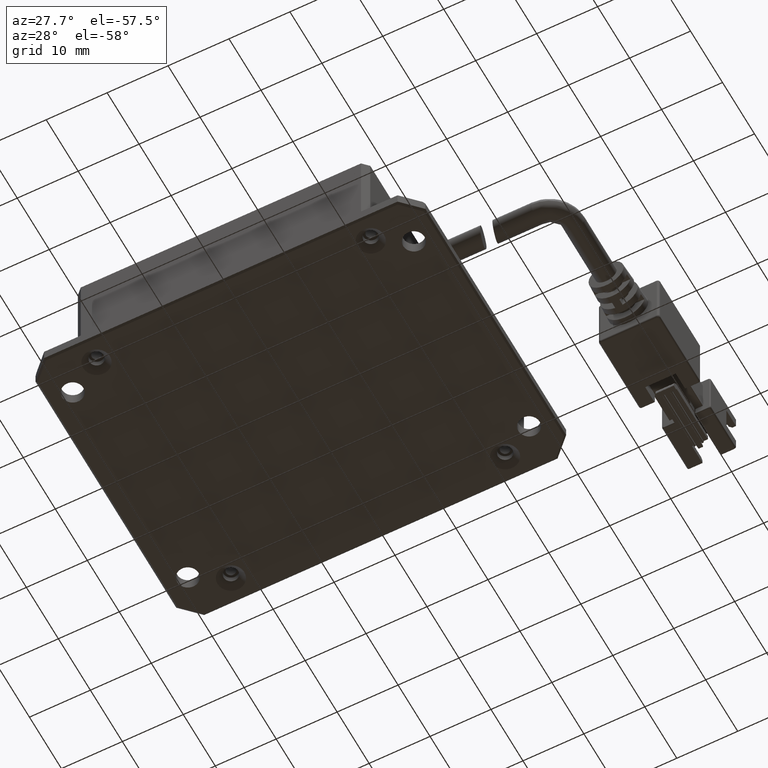
[diagram: clean part render]
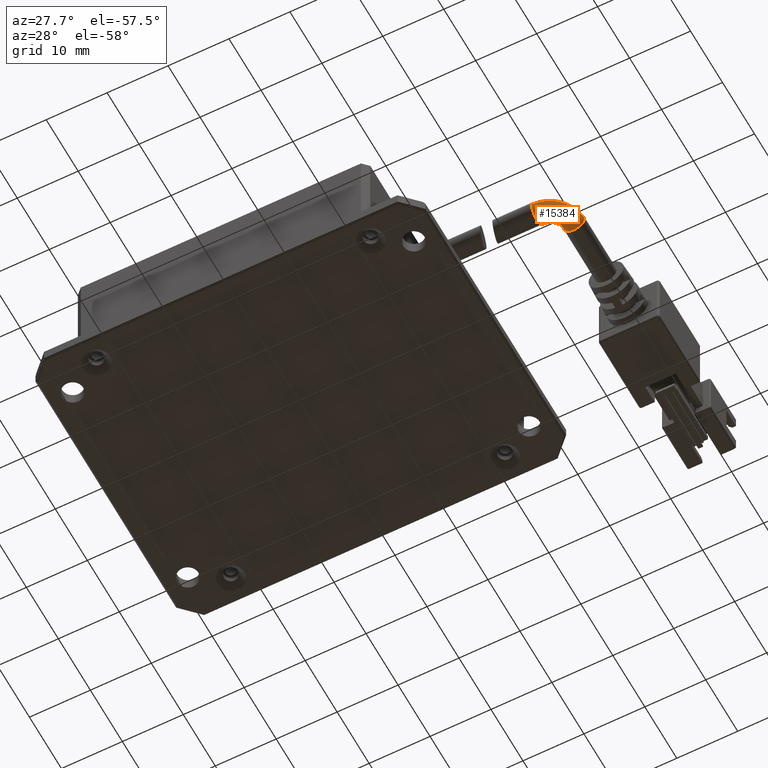
[diagram: same view with one face highlighted and labeled with its STEP entity id]
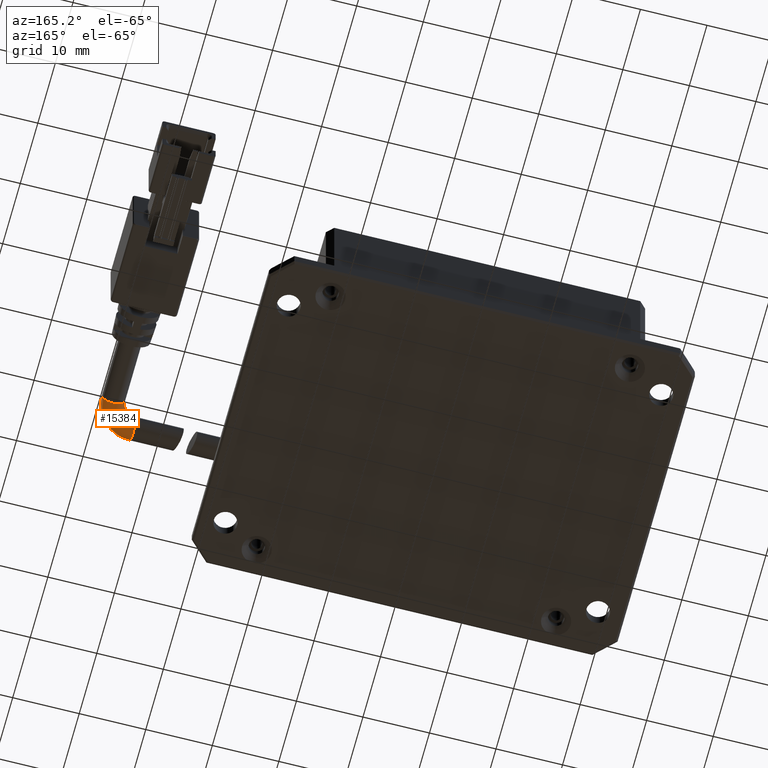
[diagram: same view with one face highlighted and labeled with its STEP entity id]
A machine part, auxiliary view. The second image highlights one B-rep face of the part: STEP entity #15384.
A second angle (auxiliary view) of the same face is appended — the face is thin or edge-on in the first view.
In plain terms, the highlighted face is a freeform B-spline surface patch.
Its self-contained STEP definition (entity closure, byte-faithful):
#15 = EDGE_CURVE ( 'NONE', #17907, #14934, #2688, .T. ) ;
#1228 = CARTESIAN_POINT ( 'NONE',  ( 48.84316533027873700, -3.709049255440967300, 4.999999999983692200 ) ) ;
#2635 = FACE_OUTER_BOUND ( 'NONE', #17044, .T. ) ;
#2688 = CIRCLE ( 'NONE', #7589, 5.749999999999998200 ) ;
#2735 = CARTESIAN_POINT ( 'NONE',  ( 45.34316533027871500, -5.027068740101500000, 4.999999999983690400 ) ) ;
#2800 = CARTESIAN_POINT ( 'NONE',  ( 46.46143734663343100, -9.459049255440968200, 4.999999999983690400 ) ) ;
#2860 = CARTESIAN_POINT ( 'NONE',  ( 43.09316533027873700, -3.709049255440967800, 4.999999999983692200 ) ) ;
#3577 = CARTESIAN_POINT ( 'NONE',  ( 47.09316533027874400, -3.709049255440967800, 4.999999999983692200 ) ) ;
#4005 = DIRECTION ( 'NONE',  ( 0.0000000000000000000, -1.000000000000000000, 0.0000000000000000000 ) ) ;
#4336 = CARTESIAN_POINT ( 'NONE',  ( 43.09316533027873000, -5.959049255440961100, 4.999999999983692200 ) ) ;
#4452 = DIRECTION ( 'NONE',  ( -1.000000000000000000, 0.0000000000000000000, 0.0000000000000000000 ) ) ;
#4779 = CARTESIAN_POINT ( 'NONE',  ( 43.09316533027873700, -7.709049255440968200, 4.999999999983692200 ) ) ;
#5194 = DIRECTION ( 'NONE',  ( 1.000000000000000000, 0.0000000000000000000, 0.0000000000000000000 ) ) ;
#5283 = ORIENTED_EDGE ( 'NONE', *, *, #16667, .F. ) ;
#5939 = CARTESIAN_POINT ( 'NONE',  ( 45.34316533027873700, -5.027068740101500000, 1.499999999983693000 ) ) ;
#6378 = DIRECTION ( 'NONE',  ( 0.0000000000000000000, -1.000000000000000000, 0.0000000000000000000 ) ) ;
#6533 =( BOUNDED_SURFACE ( )  B_SPLINE_SURFACE ( 3, 3, ( 
 ( #7658, #2735, #13787, #4336 ),
 ( #15371, #5939, #16979, #7523 ),
 ( #18585, #9112, #20170, #10675 ),
 ( #1228, #12278, #2800, #13847 ) ),
 .UNSPECIFIED., .F., .F., .F. ) 
 B_SPLINE_SURFACE_WITH_KNOTS ( ( 4, 4 ),
 ( 4, 4 ),
 ( 0.0000000000000000000, 1.000000000000000000 ),
 ( 0.0000000000000000000, 1.000000000000000000 ),
 .UNSPECIFIED. ) 
 GEOMETRIC_REPRESENTATION_ITEM ( )  RATIONAL_B_SPLINE_SURFACE ( (
 ( 1.000000000000000000, 0.8047378541243649400, 0.8047378541243649400, 1.000000000000000000),
 ( 0.3333333333333333700, 0.2682459513747883500, 0.2682459513747883500, 0.3333333333333333700),
 ( 0.3333333333333333700, 0.2682459513747883500, 0.2682459513747883500, 0.3333333333333333700),
 ( 1.000000000000000000, 0.8047378541243649400, 0.8047378541243649400, 1.000000000000000000) ) ) 
 REPRESENTATION_ITEM ( '' )  SURFACE ( )  );
#6594 = AXIS2_PLACEMENT_3D ( 'NONE', #4779, #15805, #6378 ) ;
#6759 = ORIENTED_EDGE ( 'NONE', *, *, #17516, .F. ) ;
#7523 = CARTESIAN_POINT ( 'NONE',  ( 43.09316533027873700, -5.959049255440961100, 1.499999999983692800 ) ) ;
#7589 = AXIS2_PLACEMENT_3D ( 'NONE', #13600, #13669, #13747 ) ;
#7658 = CARTESIAN_POINT ( 'NONE',  ( 45.34316533027873000, -3.709049255440967300, 4.999999999983692200 ) ) ;
#8856 = CIRCLE ( 'NONE', #10358, 2.249999999999995100 ) ;
#9112 = CARTESIAN_POINT ( 'NONE',  ( 48.84316533027873700, -7.077321271795670800, 1.499999999983693000 ) ) ;
#9416 = CIRCLE ( 'NONE', #6594, 1.749999999999999800 ) ;
#9519 = VERTEX_POINT ( 'NONE', #19930 ) ;
#10358 = AXIS2_PLACEMENT_3D ( 'NONE', #2860, #13889, #4452 ) ;
#10675 = CARTESIAN_POINT ( 'NONE',  ( 43.09316533027873700, -9.459049255440964600, 1.499999999983692800 ) ) ;
#11433 = VERTEX_POINT ( 'NONE', #18082 ) ;
#11620 = DIRECTION ( 'NONE',  ( 1.000000000000000000, 1.836970198721029700E-016, -2.588449845256445000E-031 ) ) ;
#12278 = CARTESIAN_POINT ( 'NONE',  ( 48.84316533027873700, -7.077321271795669900, 4.999999999983690400 ) ) ;
#13012 = ORIENTED_EDGE ( 'NONE', *, *, #15, .T. ) ;
#13414 = CIRCLE ( 'NONE', #16965, 1.750000000000001600 ) ;
#13589 = CARTESIAN_POINT ( 'NONE',  ( 43.09316533027873700, -7.709049255440968200, 4.999999999983692200 ) ) ;
#13600 = CARTESIAN_POINT ( 'NONE',  ( 43.09316533027873700, -3.709049255440967800, 4.999999999983692200 ) ) ;
#13669 = DIRECTION ( 'NONE',  ( -2.588449845256445000E-031, -2.672764710092196000E-049, -1.000000000000000000 ) ) ;
#13747 = DIRECTION ( 'NONE',  ( -1.000000000000000000, 0.0000000000000000000, 0.0000000000000000000 ) ) ;
#13787 = CARTESIAN_POINT ( 'NONE',  ( 44.41118481493926100, -5.959049255440966400, 4.999999999983690400 ) ) ;
#13847 = CARTESIAN_POINT ( 'NONE',  ( 43.09316533027873000, -9.459049255440964600, 4.999999999983692200 ) ) ;
#13889 = DIRECTION ( 'NONE',  ( -2.588449845256445000E-031, -2.672764710092196000E-049, -1.000000000000000000 ) ) ;
#14298 = EDGE_CURVE ( 'NONE', #14934, #11433, #9416, .T. ) ;
#14620 = DIRECTION ( 'NONE',  ( -3.081487911019577400E-033, 1.000000000000000000, -2.672764710092188000E-049 ) ) ;
#14805 = ORIENTED_EDGE ( 'NONE', *, *, #14298, .T. ) ;
#14934 = VERTEX_POINT ( 'NONE', #17482 ) ;
#15128 = CARTESIAN_POINT ( 'NONE',  ( 43.09316533027873700, -5.959049255440968200, 4.999999999983692200 ) ) ;
#15371 = CARTESIAN_POINT ( 'NONE',  ( 45.34316533027873700, -3.709049255440967300, 1.499999999983692800 ) ) ;
#15384 = ADVANCED_FACE ( 'NONE', ( #2635 ), #6533, .T. ) ;
#15805 = DIRECTION ( 'NONE',  ( 1.000000000000000000, 1.836970198721029700E-016, -2.588449845256445000E-031 ) ) ;
#16234 = CARTESIAN_POINT ( 'NONE',  ( 48.84316533027874400, -3.709049255440967800, 4.999999999983692200 ) ) ;
#16297 = VERTEX_POINT ( 'NONE', #15128 ) ;
#16643 = CIRCLE ( 'NONE', #19427, 1.749999999999999800 ) ;
#16667 = EDGE_CURVE ( 'NONE', #17907, #9519, #13414, .T. ) ;
#16965 = AXIS2_PLACEMENT_3D ( 'NONE', #3577, #14620, #5194 ) ;
#16979 = CARTESIAN_POINT ( 'NONE',  ( 44.41118481493925400, -5.959049255440965500, 1.499999999983693000 ) ) ;
#17044 = EDGE_LOOP ( 'NONE', ( #6759, #5283, #13012, #14805, #18448 ) ) ;
#17482 = CARTESIAN_POINT ( 'NONE',  ( 43.09316533027873700, -9.459049255440968200, 4.999999999983692200 ) ) ;
#17516 = EDGE_CURVE ( 'NONE', #9519, #16297, #8856, .T. ) ;
#17907 = VERTEX_POINT ( 'NONE', #16234 ) ;
#18082 = CARTESIAN_POINT ( 'NONE',  ( 43.09316533027873700, -7.709049255440968200, 3.249999999983691700 ) ) ;
#18448 = ORIENTED_EDGE ( 'NONE', *, *, #20450, .T. ) ;
#18585 = CARTESIAN_POINT ( 'NONE',  ( 48.84316533027873700, -3.709049255440967300, 1.499999999983692800 ) ) ;
#19427 = AXIS2_PLACEMENT_3D ( 'NONE', #13589, #11620, #4005 ) ;
#19930 = CARTESIAN_POINT ( 'NONE',  ( 45.34316533027873700, -3.709049255440967800, 4.999999999983692200 ) ) ;
#20170 = CARTESIAN_POINT ( 'NONE',  ( 46.46143734663343100, -9.459049255440968200, 1.499999999983693000 ) ) ;
#20450 = EDGE_CURVE ( 'NONE', #11433, #16297, #16643, .T. ) ;